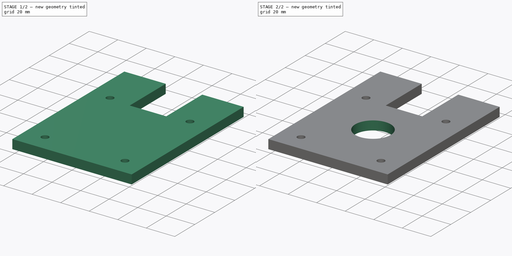
[diagram: build sequence overview — one tinted view per stage of 2, left to right]
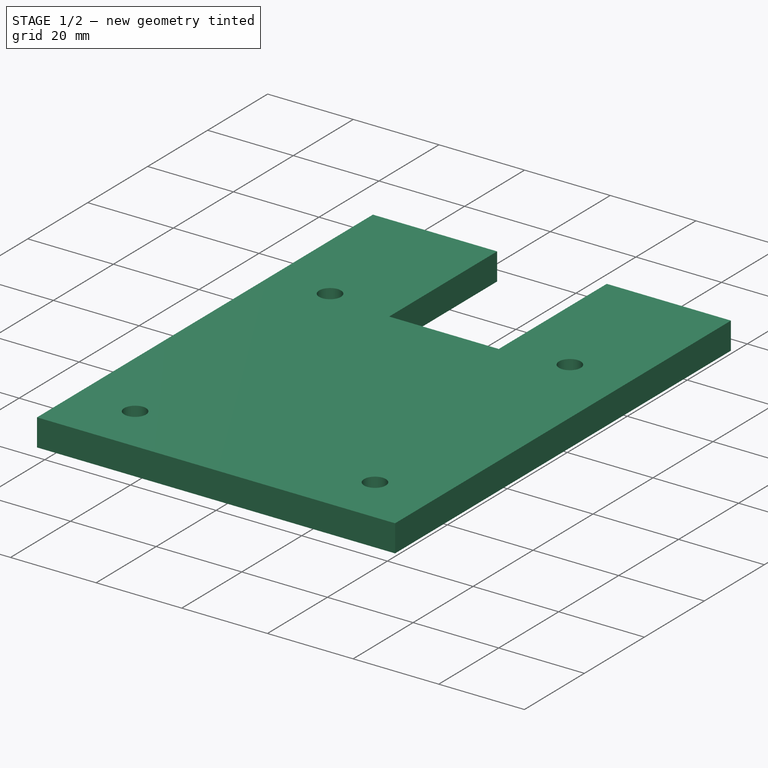
[diagram: stage 1 of 2 — iso view after this stage's code; geometry added in this stage tinted green]
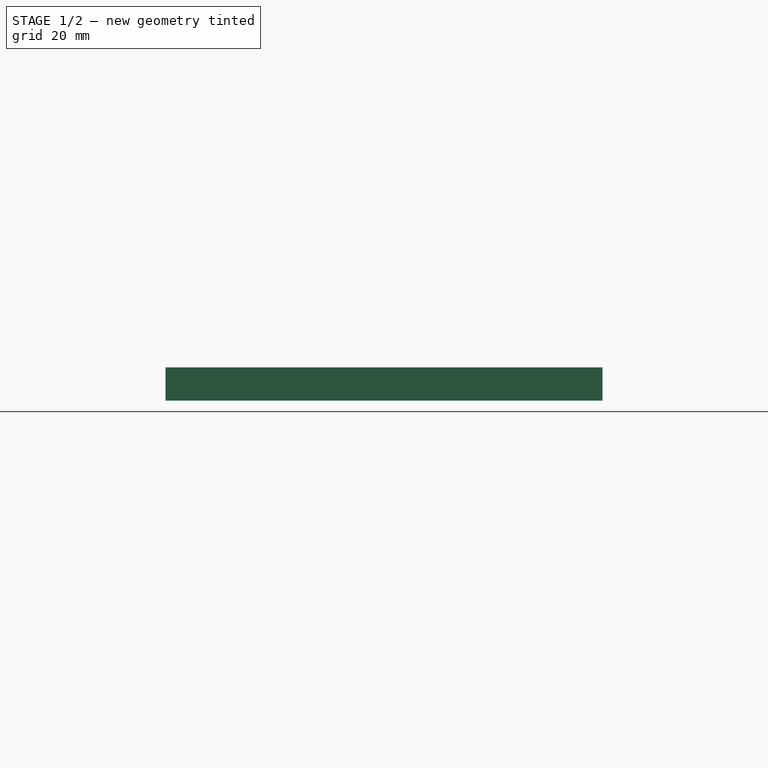
[diagram: stage 1 of 2 — front view after this stage's code; geometry added in this stage tinted green]
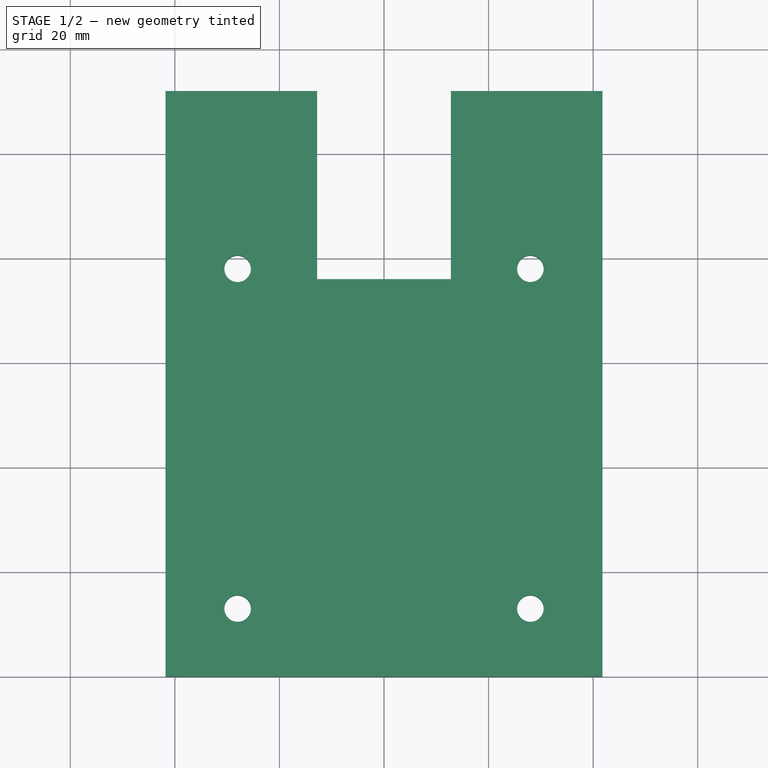
[diagram: stage 1 of 2 — top view after this stage's code; geometry added in this stage tinted green]
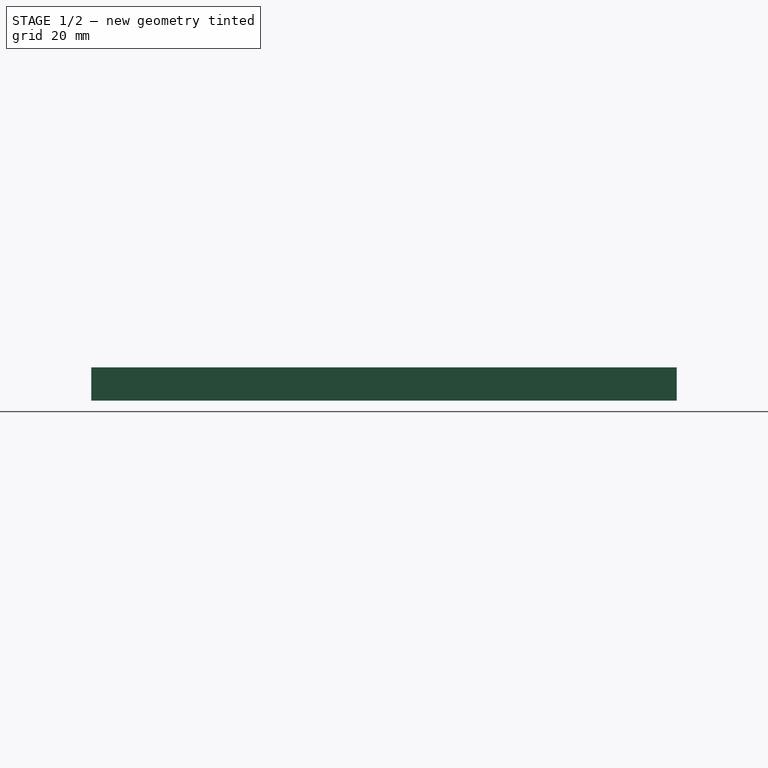
[diagram: stage 1 of 2 — right view after this stage's code; geometry added in this stage tinted green]
FCSTD DOCUMENT  (FreeCAD 0.20R29410 (Git))
Label: cover_integrated_bearing
License: All rights reserved
LicenseURL: http://en.wikipedia.org/wiki/All_rights_reserved
objects: Sketcher::SketchObject×2, PartDesign::Pad×1, PartDesign::Mirrored×1, PartDesign::Pocket×1, PartDesign::Body×1, App::Link×1
note: 8 computed .brp shape members not serialized (recipe doc carries the construction recipe); baked Part::Feature solids carry a one-line shape summary decoded from their .brp
EXTERNAL_REF file=bearing.FCStd obj=InternalInvoluteGear

FEATURE [Sketcher::SketchObject] Sketch
  FullyConstrained = true
  MapMode = 5
  Support = -> [XY_Plane]
  sketch-geometry (8):
    g0: LineSegment StartX=-2.6e-15 StartY=0 StartZ=0 EndX=-41.8 EndY=0 EndZ=0
    g1: LineSegment StartX=-41.8 StartY=0 StartZ=0 EndX=-41.8 EndY=112 EndZ=0
    g2: LineSegment StartX=-41.8 StartY=112 StartZ=0 EndX=-12.8 EndY=112 EndZ=0
    g3: LineSegment StartX=-12.8 StartY=112 StartZ=0 EndX=-12.8 EndY=76 EndZ=0
    g4: LineSegment StartX=-12.8 StartY=76 StartZ=0 EndX=-1.8e-15 EndY=76 EndZ=0
    g5: Circle CenterX=-28 CenterY=13 CenterZ=0 NormalX=0 NormalY=0 NormalZ=1 AngleXU=0 Radius=2.54
    g6: Circle CenterX=-28 CenterY=78 CenterZ=0 NormalX=0 NormalY=0 NormalZ=1 AngleXU=0 Radius=2.54
    g7: LineSegment StartX=-1.8e-15 StartY=76 StartZ=0 EndX=-2.6e-15 EndY=0 EndZ=0
  constraints (23):
    c: Coincident(g0,g1)
    c: Horizontal(g0)
    c: Vertical(g1)
    c: Coincident(g0,g-1)
    c: Coincident(g2,g1)
    c: Horizontal(g2)
    c: Coincident(g3,g2)
    c: Vertical(g3)
    c: Coincident(g4,g3)
    c: PointOnObject(g4,g-2)
    c: Horizontal(g4)
    c: Coincident(g7,g0)
    c: DistanceY(g1,g1) = 112
    c: DistanceX(g2,g2) = 29
    c: DistanceX(g4,g4) = 12.8
    c: DistanceY(g3,g3) = 36
    c: DistanceX(g5,g0) = 28
    c: Vertical(g6,g5)
    c: DistanceY(g5,g6) = 65
    c: DistanceY(g0,g5) = 13
    c: Equal(g5,g6)
    c: Diameter(g5) = 5.08
    c: Coincident(g7,g4)
FEATURE [PartDesign::Pad] Pad
  Direction = (0,0,1)
  Length = 6.35
  Length2 = 10
  Profile = -> Sketch
  ReferenceAxis = -> Sketch [N_Axis]
  Type = 0
FEATURE [PartDesign::Mirrored] Mirrored
  BaseFeature = -> Pad
  MirrorPlane = -> Sketch [V_Axis]
  Originals = -> [Pad]
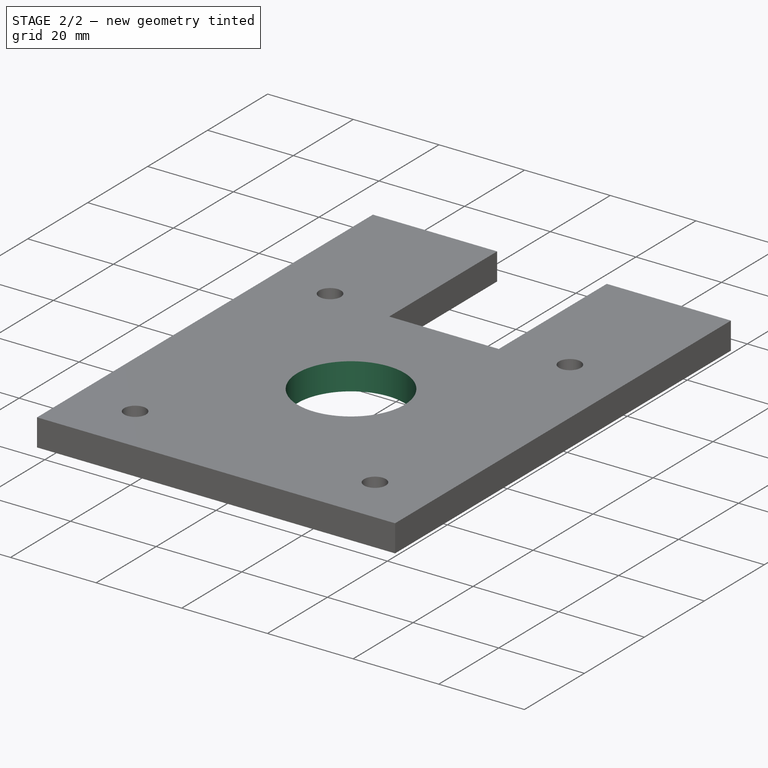
[diagram: stage 2 of 2 — iso view after this stage's code; geometry added in this stage tinted green]
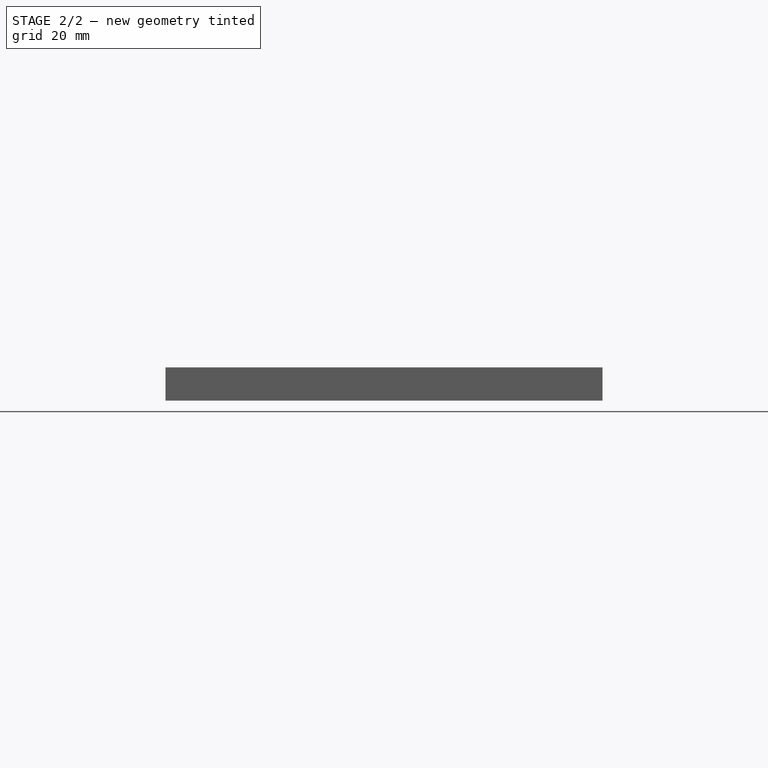
[diagram: stage 2 of 2 — front view after this stage's code; geometry added in this stage tinted green]
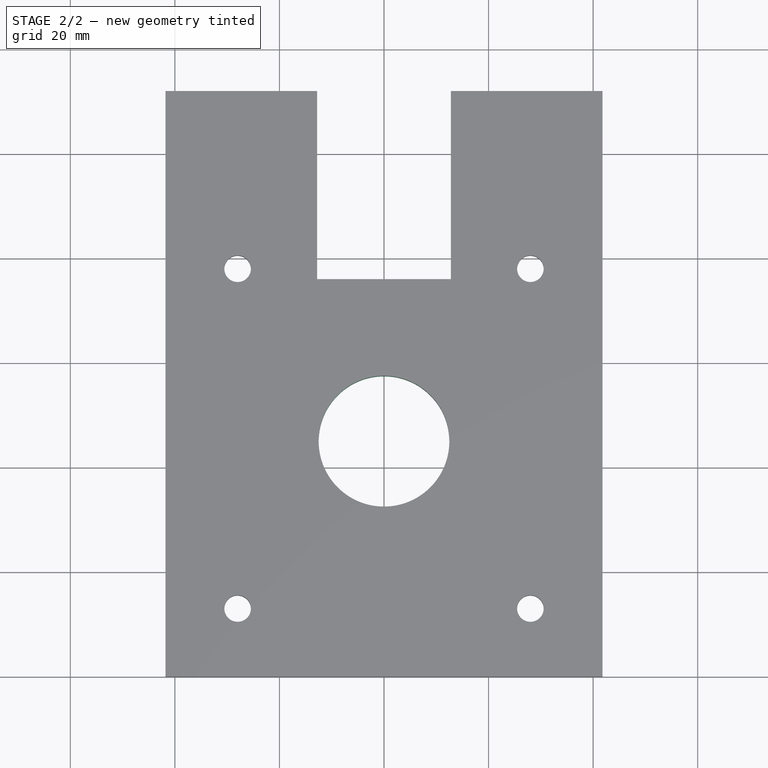
[diagram: stage 2 of 2 — top view after this stage's code; geometry added in this stage tinted green]
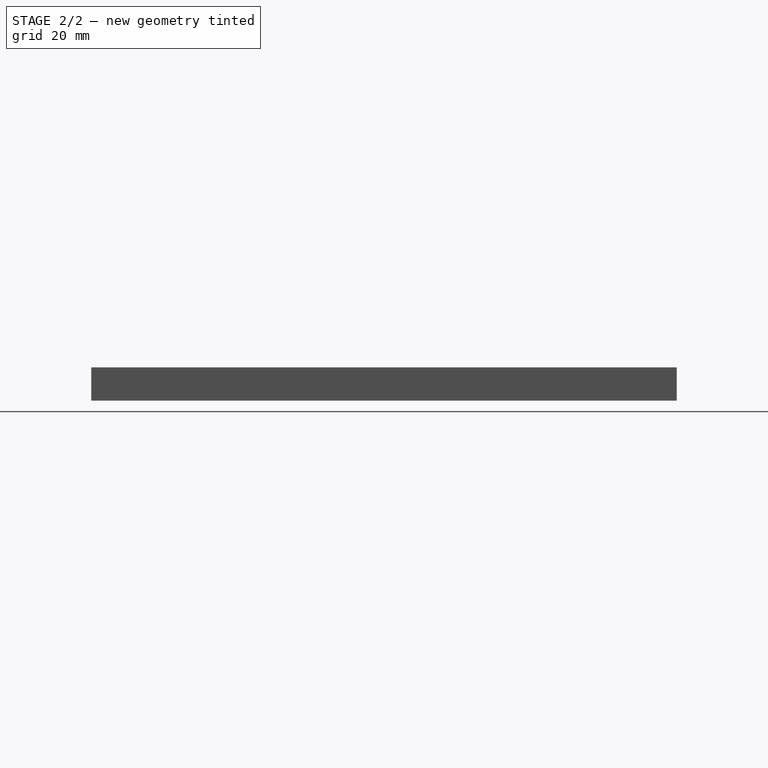
[diagram: stage 2 of 2 — right view after this stage's code; geometry added in this stage tinted green]
FEATURE [Sketcher::SketchObject] Sketch002
  FullyConstrained = true
  MapMode = 5
  Support = -> [XY_Plane]
  sketch-geometry (1):
    g0: Circle CenterX=0 CenterY=45 CenterZ=0 NormalX=0 NormalY=0 NormalZ=1 AngleXU=0 Radius=12.5
  constraints (3):
    c: PointOnObject(g0,g-2)
    c: Diameter(g0) = 25
    c: DistanceY(g-1,g0) = 45
FEATURE [PartDesign::Pocket] Pocket001
  BaseFeature = -> Mirrored
  Direction = (0,0,-1)
  Length = 5
  Length2 = 5
  Profile = -> Sketch002
  ReferenceAxis = -> Sketch002 [N_Axis]
  Reversed = true
  Type = 1
FEATURE [PartDesign::Body] Body
  Group = -> [Sketch,Pad,Mirrored,Sketch002,Pocket001]
  Origin = -> Origin
  Tip = -> Pocket001
FEATURE [App::Link] Link
  LinkedObject = -> <external bearing.FCStd>#InternalInvoluteGear
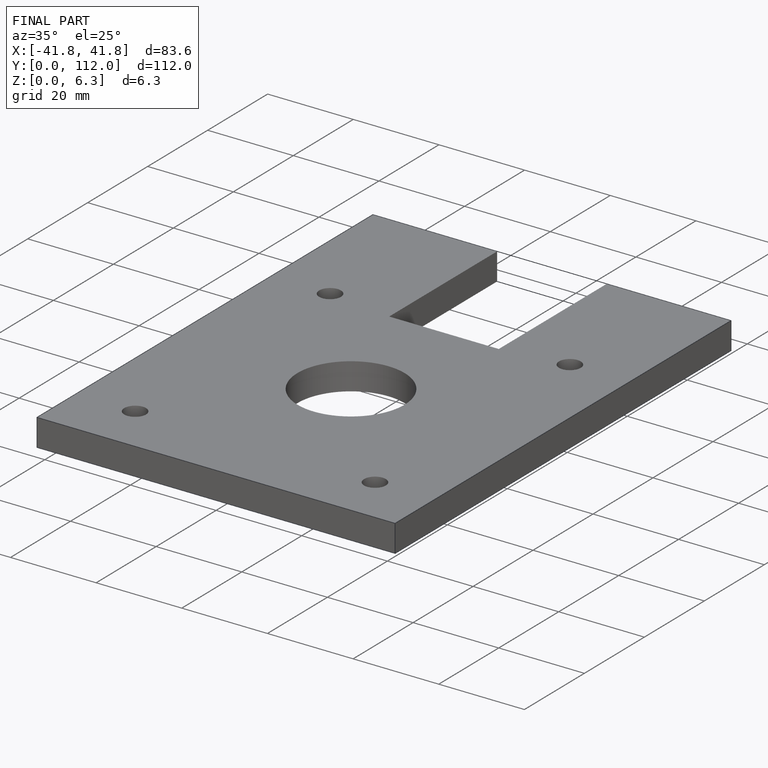
[diagram: finished part — iso view with bounding-box wireframe]
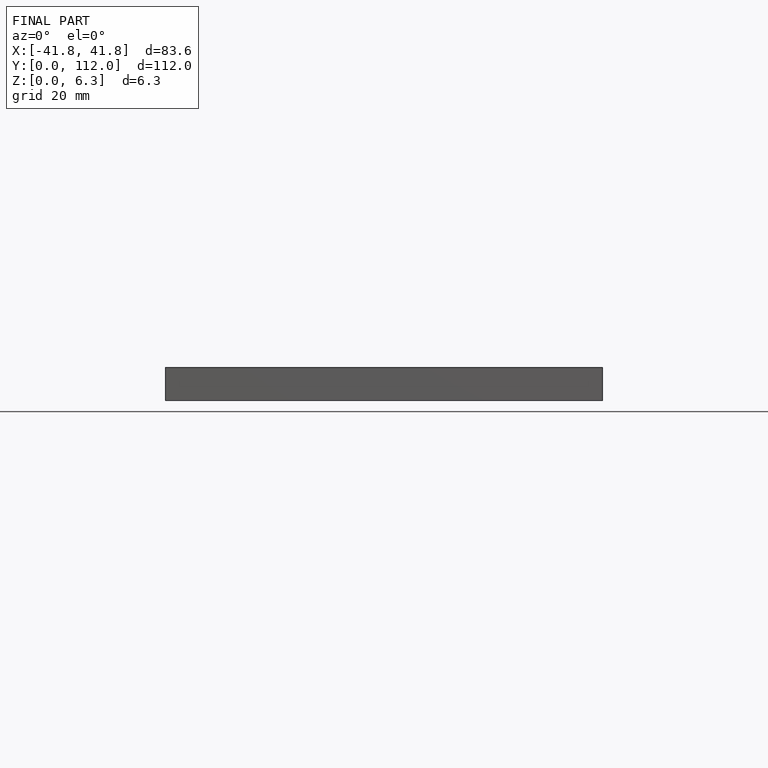
[diagram: finished part — front view with bounding-box wireframe]
